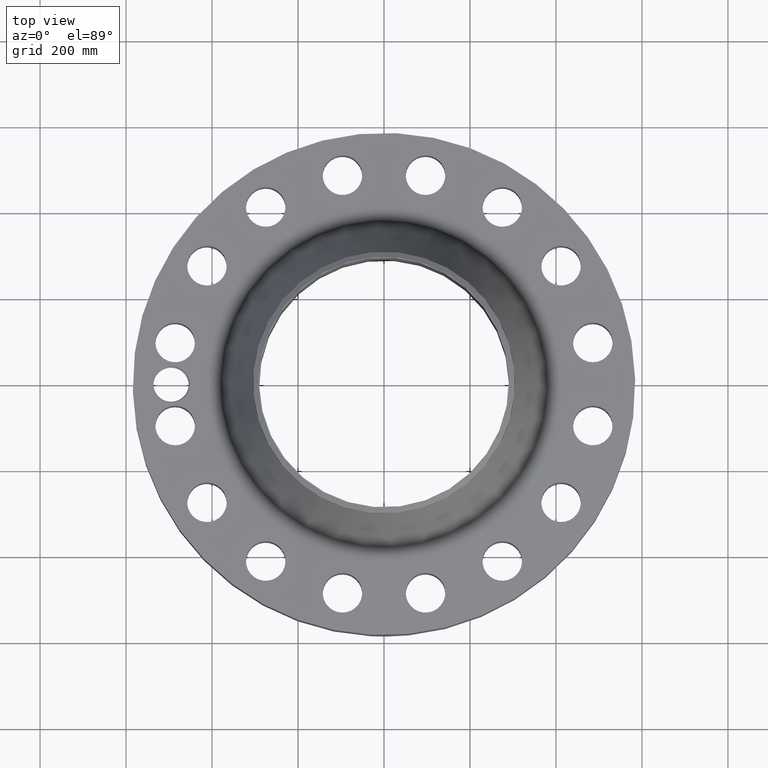
[diagram: clean part render]
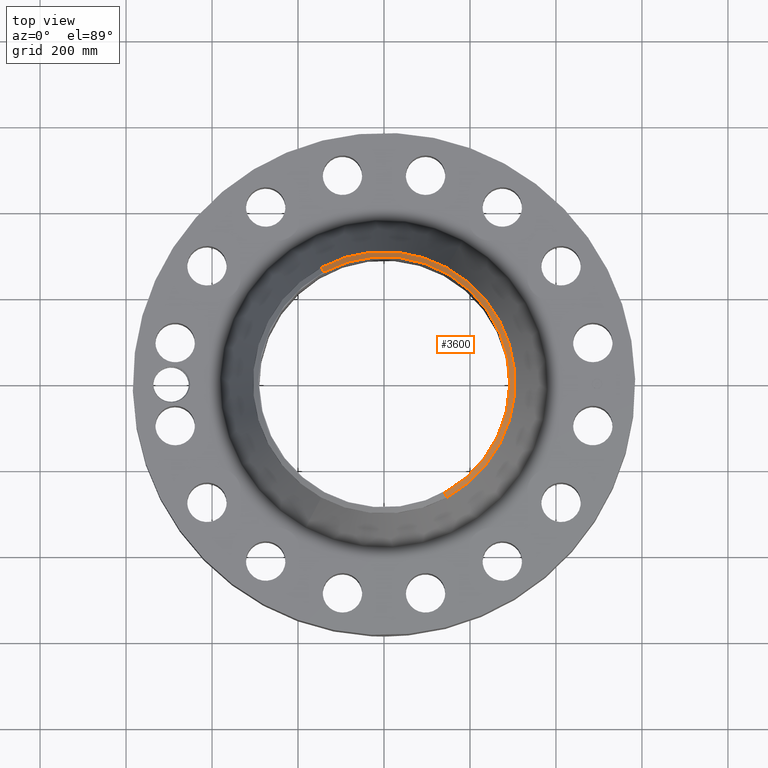
[diagram: same view with one face highlighted and labeled with its STEP entity id]
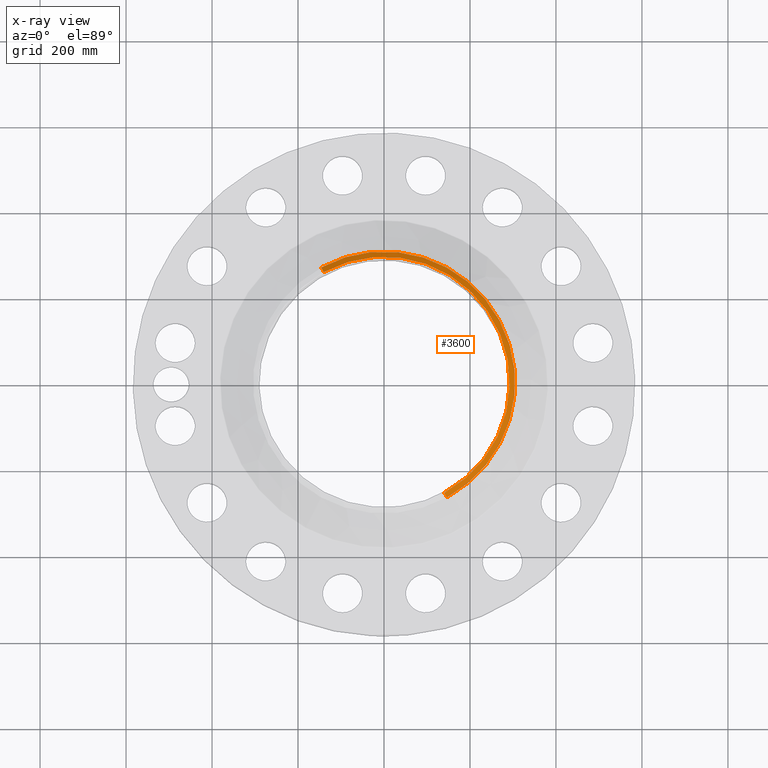
[diagram: x-ray of the same camera — body ghosted, the highlighted face saturated]
A machine part, top view. The second image highlights one B-rep face of the part: STEP entity #3600.
The next image is the same camera in x-ray: the body ghosted, the highlighted face saturated — about 0% of this face is hidden behind the body in this view.
In plain terms, the highlighted conical surface has half-angle 52.5 deg.
Its self-contained STEP definition (entity closure, byte-faithful):
#2706=AXIS2_PLACEMENT_3D('Circle Axis2P3D',#2704,#2705,$) ;
#3545=AXIS2_PLACEMENT_3D('Cone Axis2P3D',#3542,#3543,#3544) ;
#3583=AXIS2_PLACEMENT_3D('Circle Axis2P3D',#3581,#3582,$) ;
#3590=AXIS2_PLACEMENT_3D('Circle Axis2P3D',#3588,#3589,$) ;
#2704=CARTESIAN_POINT('Axis2P3D Location',(0.,0.,16.2500000001)) ;
#2708=CARTESIAN_POINT('Vertex',(5.52141935299,-10.1068903321,16.2500000001)) ;
#2710=CARTESIAN_POINT('Vertex',(-5.52141935299,10.1068903321,16.2500000001)) ;
#3542=CARTESIAN_POINT('Axis2P3D Location',(0.,0.,16.2500000001)) ;
#3547=CARTESIAN_POINT('Line Origine',(5.63726290813,-10.3189405374,16.0645908404)) ;
#3551=CARTESIAN_POINT('Vertex',(5.75310646327,-10.5309907427,15.8791816807)) ;
#3554=CARTESIAN_POINT('Line Origine',(-5.63726290813,10.3189405374,16.0645908404)) ;
#3558=CARTESIAN_POINT('Vertex',(-5.75310646327,10.5309907427,15.8791816807)) ;
#3581=CARTESIAN_POINT('Axis2P3D Location',(0.,0.,15.8791816807)) ;
#3585=CARTESIAN_POINT('Vertex',(5.75310646327,10.5309907427,15.8791816807)) ;
#3588=CARTESIAN_POINT('Axis2P3D Location',(0.,0.,15.8791816807)) ;
#2705=DIRECTION('Axis2P3D Direction',(0.,0.,-0.0393700787402)) ;
#3543=DIRECTION('Axis2P3D Direction',(-0.,-0.,-0.0393700787402)) ;
#3544=DIRECTION('Axis2P3D XDirection',(-0.0188750212049,0.0345504945626,0.)) ;
#3548=DIRECTION('Vector Direction',(0.014974561121,-0.02741075027,-0.023966985394)) ;
#3555=DIRECTION('Vector Direction',(-0.014974561121,0.02741075027,-0.023966985394)) ;
#3582=DIRECTION('Axis2P3D Direction',(0.,0.,-0.0393700787402)) ;
#3589=DIRECTION('Axis2P3D Direction',(0.,0.,-0.0393700787402)) ;
#3549=VECTOR('Line Direction',#3548,0.0393700787402) ;
#3556=VECTOR('Line Direction',#3555,0.0393700787402) ;
#3594=ORIENTED_EDGE('',*,*,#3560,.F.) ;
#3595=ORIENTED_EDGE('',*,*,#2712,.F.) ;
#3596=ORIENTED_EDGE('',*,*,#3553,.T.) ;
#3597=ORIENTED_EDGE('',*,*,#3587,.T.) ;
#3598=ORIENTED_EDGE('',*,*,#3592,.F.) ;
#3600=ADVANCED_FACE('PartBody',(#3599),#3546,.T.) ;
#2707=CIRCLE('generated circle',#2706,11.5167401575) ;
#3584=CIRCLE('generated circle',#3583,12.) ;
#3591=CIRCLE('generated circle',#3590,12.) ;
#3546=CONICAL_SURFACE('Cone',#3545,11.5167401575,0.916297857297) ;
#2712=EDGE_CURVE('',#2709,#2711,#2707,.F.) ;
#3553=EDGE_CURVE('',#2709,#3552,#3550,.T.) ;
#3560=EDGE_CURVE('',#2711,#3559,#3557,.T.) ;
#3587=EDGE_CURVE('',#3552,#3586,#3584,.F.) ;
#3592=EDGE_CURVE('',#3559,#3586,#3591,.T.) ;
#3593=EDGE_LOOP('',(#3594,#3595,#3596,#3597,#3598)) ;
#3599=FACE_OUTER_BOUND('',#3593,.T.) ;
#3550=LINE('Line',#3547,#3549) ;
#3557=LINE('Line',#3554,#3556) ;
#2709=VERTEX_POINT('',#2708) ;
#2711=VERTEX_POINT('',#2710) ;
#3552=VERTEX_POINT('',#3551) ;
#3559=VERTEX_POINT('',#3558) ;
#3586=VERTEX_POINT('',#3585) ;